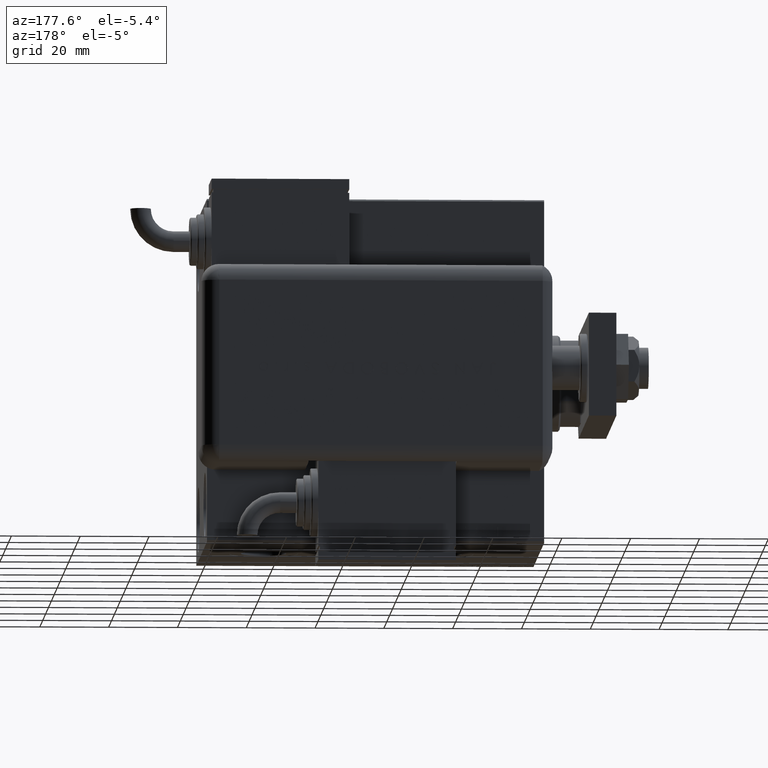
[diagram: clean part render]
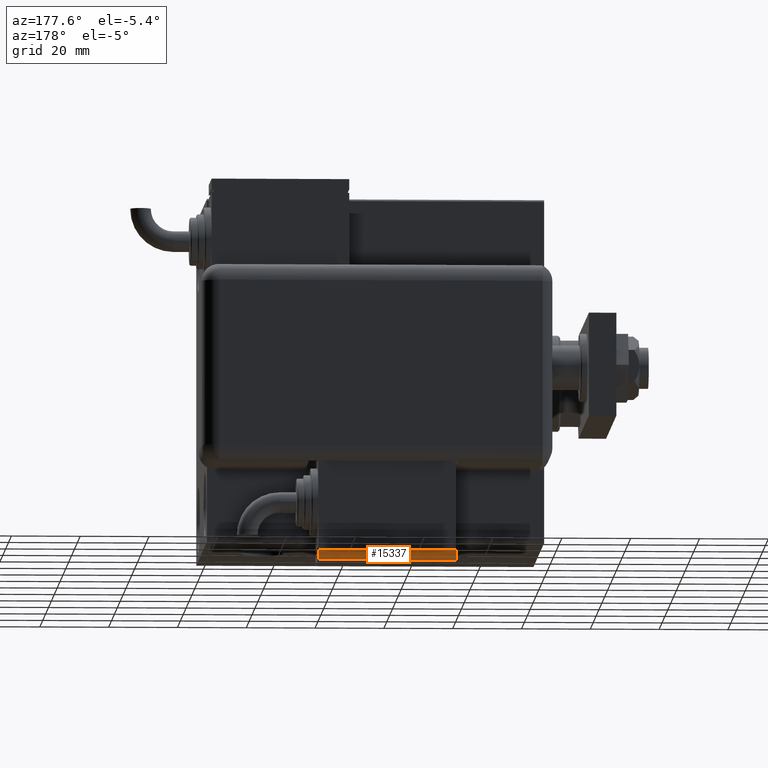
[diagram: same view with one face highlighted and labeled with its STEP entity id]
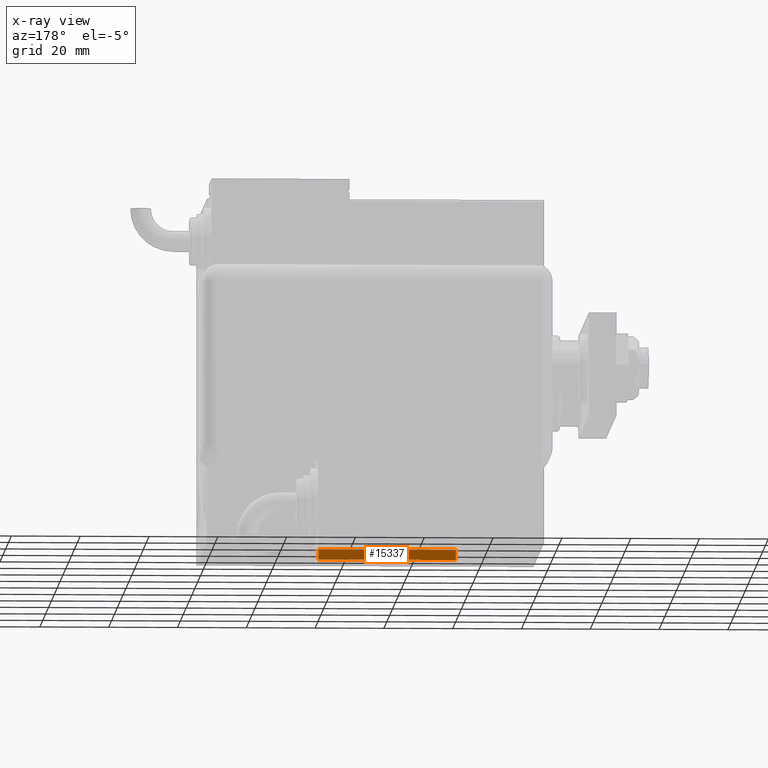
[diagram: x-ray of the same camera — body ghosted, the highlighted face saturated]
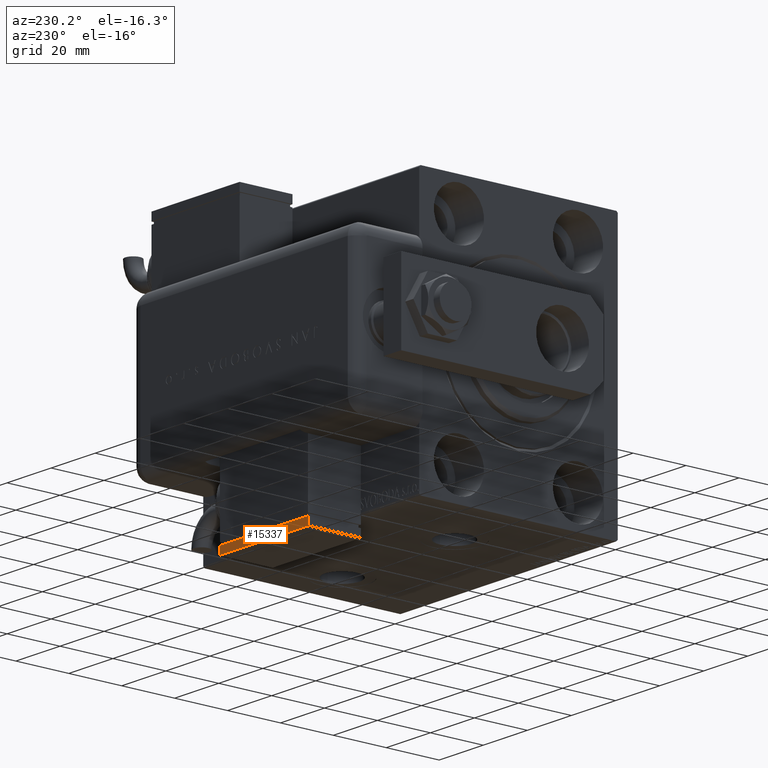
[diagram: same view with one face highlighted and labeled with its STEP entity id]
A machine part, auxiliary view. The second image highlights one B-rep face of the part: STEP entity #15337.
The next image is the same camera in x-ray: the body ghosted, the highlighted face saturated — about 0% of this face is hidden behind the body in this view.
A second angle (auxiliary view) of the same face is appended — the face is thin or edge-on in the first view.
In plain terms, the highlighted planar face has unit normal (0, -1, 0).
Its self-contained STEP definition (entity closure, byte-faithful):
#10 = VERTEX_POINT ( 'NONE', #47790 ) ;
#2017 = EDGE_CURVE ( 'NONE', #10, #17257, #29814, .T. ) ;
#4114 = DIRECTION ( 'NONE',  ( -1.000000000000000000, -0.000000000000000000, -0.000000000000000000 ) ) ;
#5522 = DIRECTION ( 'NONE',  ( 0.000000000000000000, 0.000000000000000000, -1.000000000000000000 ) ) ;
#7450 = VECTOR ( 'NONE', #59507, 1000.000000000000000 ) ;
#9205 = ORIENTED_EDGE ( 'NONE', *, *, #24641, .F. ) ;
#10682 = FACE_OUTER_BOUND ( 'NONE', #27699, .T. ) ;
#12817 = LINE ( 'NONE', #54870, #40415 ) ;
#15337 = ADVANCED_FACE ( 'NONE', ( #10682 ), #47606, .F. ) ;
#16533 = VECTOR ( 'NONE', #57073, 1000.000000000000000 ) ;
#17257 = VERTEX_POINT ( 'NONE', #33641 ) ;
#18449 = ORIENTED_EDGE ( 'NONE', *, *, #30498, .F. ) ;
#19019 = CARTESIAN_POINT ( 'NONE',  ( 20.00000000000005329, -17.49999999999996092, 10.00000000000000000 ) ) ;
#20631 = ORIENTED_EDGE ( 'NONE', *, *, #50058, .T. ) ;
#23993 = DIRECTION ( 'NONE',  ( -1.000000000000000000, 0.000000000000000000, -0.000000000000000000 ) ) ;
#24641 = EDGE_CURVE ( 'NONE', #37583, #17257, #12817, .T. ) ;
#27699 = EDGE_LOOP ( 'NONE', ( #55799, #9205, #18449, #20631 ) ) ;
#29814 = LINE ( 'NONE', #30111, #16533 ) ;
#30111 = CARTESIAN_POINT ( 'NONE',  ( -19.99999999999994316, -14.49999999999996092, 10.00000000000000000 ) ) ;
#30498 = EDGE_CURVE ( 'NONE', #38947, #37583, #48643, .T. ) ;
#31858 = DIRECTION ( 'NONE',  ( -0.000000000000000000, 1.000000000000000000, -0.000000000000000000 ) ) ;
#33641 = CARTESIAN_POINT ( 'NONE',  ( -19.99999999999994316, -14.49999999999996092, 10.00000000000000000 ) ) ;
#34584 = CARTESIAN_POINT ( 'NONE',  ( 20.00000000000005329, -17.49999999999996092, 10.00000000000000000 ) ) ;
#35265 = AXIS2_PLACEMENT_3D ( 'NONE', #46992, #5522, #23993 ) ;
#37583 = VERTEX_POINT ( 'NONE', #50446 ) ;
#38947 = VERTEX_POINT ( 'NONE', #34584 ) ;
#40415 = VECTOR ( 'NONE', #31858, 1000.000000000000000 ) ;
#42034 = LINE ( 'NONE', #19019, #7450 ) ;
#45592 = CARTESIAN_POINT ( 'NONE',  ( -19.99999999999994316, -17.49999999999996092, 10.00000000000000000 ) ) ;
#46992 = CARTESIAN_POINT ( 'NONE',  ( -19.99999999999994316, -17.49999999999996092, 10.00000000000000000 ) ) ;
#47606 = PLANE ( 'NONE',  #35265 ) ;
#47790 = CARTESIAN_POINT ( 'NONE',  ( 20.00000000000005329, -14.49999999999996092, 10.00000000000000000 ) ) ;
#48405 = VECTOR ( 'NONE', #4114, 1000.000000000000000 ) ;
#48643 = LINE ( 'NONE', #45592, #48405 ) ;
#50058 = EDGE_CURVE ( 'NONE', #38947, #10, #42034, .T. ) ;
#50446 = CARTESIAN_POINT ( 'NONE',  ( -19.99999999999994316, -17.49999999999996092, 10.00000000000000000 ) ) ;
#54870 = CARTESIAN_POINT ( 'NONE',  ( -19.99999999999994316, -17.49999999999996092, 10.00000000000000000 ) ) ;
#55799 = ORIENTED_EDGE ( 'NONE', *, *, #2017, .T. ) ;
#57073 = DIRECTION ( 'NONE',  ( -1.000000000000000000, -0.000000000000000000, -0.000000000000000000 ) ) ;
#59507 = DIRECTION ( 'NONE',  ( -0.000000000000000000, 1.000000000000000000, -0.000000000000000000 ) ) ;